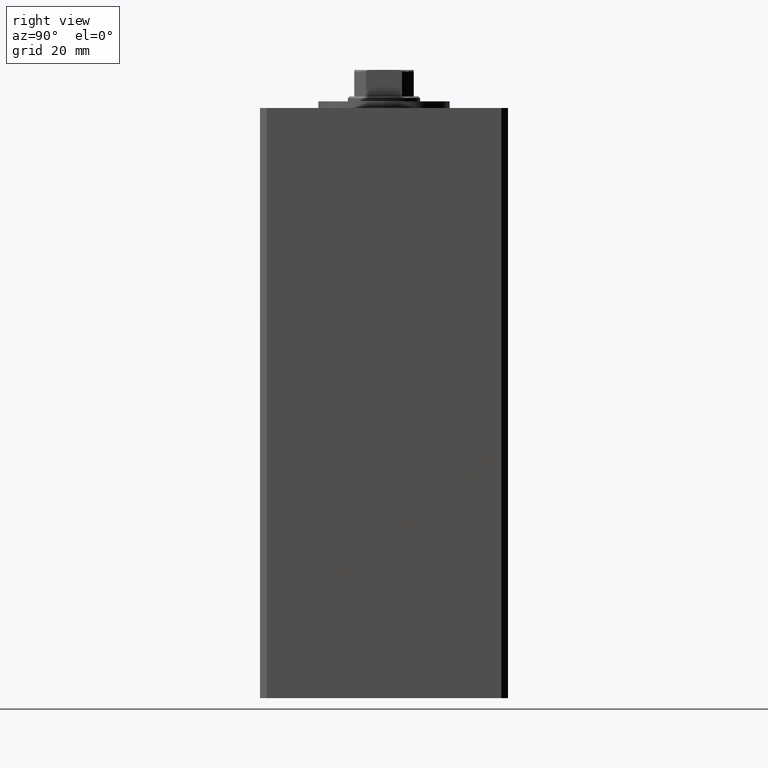
[diagram: clean part render]
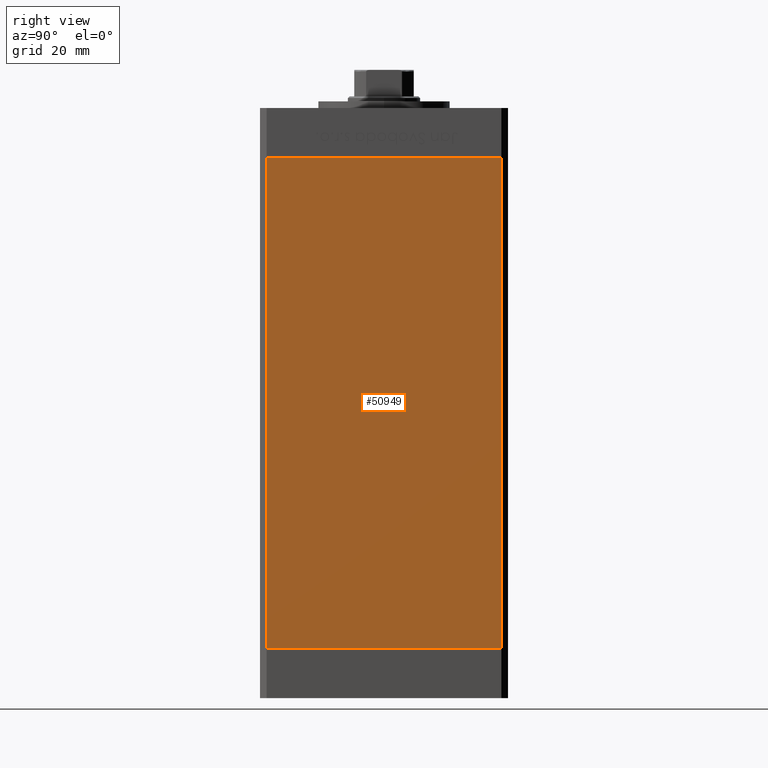
[diagram: same view with one face highlighted and labeled with its STEP entity id]
A machine part, right view. The second image highlights one B-rep face of the part: STEP entity #50949.
In plain terms, the highlighted planar face has unit normal (1, -0, 0).
Its self-contained STEP definition (entity closure, byte-faithful):
#101 = DIRECTION ( 'NONE',  ( -2.931927001650941360E-16, -1.000000000000000000, 0.000000000000000000 ) ) ;
#137 = CARTESIAN_POINT ( 'NONE',  ( 42.49999999999998579, -35.50000000000000711, 148.5000000000000000 ) ) ;
#2989 = ORIENTED_EDGE ( 'NONE', *, *, #31472, .T. ) ;
#4903 = VERTEX_POINT ( 'NONE', #13642 ) ;
#4918 = DIRECTION ( 'NONE',  ( 2.931927001650941360E-16, 1.000000000000000000, 0.000000000000000000 ) ) ;
#7410 = LINE ( 'NONE', #11118, #8631 ) ;
#8099 = EDGE_LOOP ( 'NONE', ( #16382, #45944, #2989, #22088 ) ) ;
#8631 = VECTOR ( 'NONE', #35107, 1000.000000000000000 ) ;
#9390 = PLANE ( 'NONE',  #51382 ) ;
#11118 = CARTESIAN_POINT ( 'NONE',  ( 42.50000000000000711, 35.50000000000001421, 148.5000000000000000 ) ) ;
#11979 = CARTESIAN_POINT ( 'NONE',  ( 42.49999999999998579, -35.50000000000000711, 0.000000000000000000 ) ) ;
#12224 = CARTESIAN_POINT ( 'NONE',  ( 42.50000000000000711, 35.50000000000001421, 148.5000000000000000 ) ) ;
#13642 = CARTESIAN_POINT ( 'NONE',  ( 42.50000000000000711, 35.50000000000001421, 0.000000000000000000 ) ) ;
#16382 = ORIENTED_EDGE ( 'NONE', *, *, #16951, .F. ) ;
#16951 = EDGE_CURVE ( 'NONE', #4903, #32924, #25676, .T. ) ;
#17809 = FACE_OUTER_BOUND ( 'NONE', #8099, .T. ) ;
#19682 = VERTEX_POINT ( 'NONE', #42719 ) ;
#21459 = CARTESIAN_POINT ( 'NONE',  ( 42.50000000000000711, 35.50000000000001421, 0.000000000000000000 ) ) ;
#21500 = DIRECTION ( 'NONE',  ( 1.000000000000000000, -2.931927001650941360E-16, 0.000000000000000000 ) ) ;
#22088 = ORIENTED_EDGE ( 'NONE', *, *, #22711, .T. ) ;
#22711 = EDGE_CURVE ( 'NONE', #37978, #32924, #24911, .T. ) ;
#23984 = EDGE_CURVE ( 'NONE', #19682, #4903, #7410, .T. ) ;
#24911 = LINE ( 'NONE', #137, #45691 ) ;
#25676 = LINE ( 'NONE', #21459, #44790 ) ;
#26134 = CARTESIAN_POINT ( 'NONE',  ( 42.49999999999998579, -35.50000000000000711, 148.5000000000000000 ) ) ;
#29377 = DIRECTION ( 'NONE',  ( -2.931927001650941360E-16, -1.000000000000000000, 0.000000000000000000 ) ) ;
#31472 = EDGE_CURVE ( 'NONE', #19682, #37978, #40454, .T. ) ;
#32924 = VERTEX_POINT ( 'NONE', #11979 ) ;
#35107 = DIRECTION ( 'NONE',  ( -0.000000000000000000, -0.000000000000000000, -1.000000000000000000 ) ) ;
#37095 = CARTESIAN_POINT ( 'NONE',  ( 42.50000000000000711, 35.50000000000001421, 148.5000000000000000 ) ) ;
#37978 = VERTEX_POINT ( 'NONE', #26134 ) ;
#40454 = LINE ( 'NONE', #12224, #49295 ) ;
#40744 = DIRECTION ( 'NONE',  ( -0.000000000000000000, -0.000000000000000000, -1.000000000000000000 ) ) ;
#42719 = CARTESIAN_POINT ( 'NONE',  ( 42.50000000000000711, 35.50000000000001421, 148.5000000000000000 ) ) ;
#44790 = VECTOR ( 'NONE', #29377, 1000.000000000000000 ) ;
#45691 = VECTOR ( 'NONE', #40744, 1000.000000000000000 ) ;
#45944 = ORIENTED_EDGE ( 'NONE', *, *, #23984, .F. ) ;
#49295 = VECTOR ( 'NONE', #101, 1000.000000000000000 ) ;
#50949 = ADVANCED_FACE ( 'NONE', ( #17809 ), #9390, .T. ) ;
#51382 = AXIS2_PLACEMENT_3D ( 'NONE', #37095, #21500, #4918 ) ;